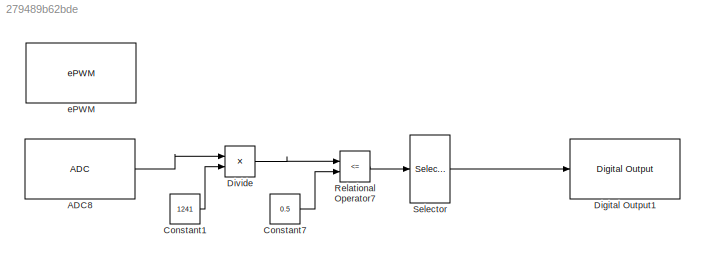
MODEL slx_279489b62bde
KIND model
CONFIG AbsTol = auto
CONFIG EnableMultiTasking = off
CONFIG FixedStep = auto
CONFIG MaxStep = auto
CONFIG MinStep = auto
CONFIG RelTol = 1e-3
CONFIG SampleTimeConstraint = Unconstrained
CONFIG SolverName = VariableStepAuto
CONFIG StartTime = 0.0
CONFIG StopTime = 10.0
WORKSPACE source: mxarray member
WORKSPACE pwmCounterMax = 1500
BLOCK [Reference] ADC8  REF=c2802xlib/ADC
  LibrarySourceBlock = c2806xlib/ADC
  SourceBlock = c2802xlib/ADC
  SourceType = ADC Type 3-5
  UserDataPersistent = on
BLOCK [Constant] Constant1
  Value = 1241
BLOCK [Constant] Constant7
  Value = 0.5
BLOCK [Reference] Digital Output1  REF=c2806xlib/Digital Output
  SourceBlock = c2806xlib/Digital Output
  SourceType = C2806x GPIO Digital Output
  UserDataPersistent = on
BLOCK [Product] Divide
  Inputs = */
BLOCK [RelationalOperator] Relational Operator7
  InputSameDT = off
  Operator = <=
  OutDataTypeStr = boolean
  RndMeth = Simplest
BLOCK [Selector] Selector
  IndexOptions = Index vector (dialog)
  Indices = [1 1 1 2 2 2]
  InputPortWidth = 2
  OutputSizes = 1
BLOCK [Reference] ePWM  REF=c2802xlib/ePWM
  LibrarySourceBlock = c2806xlib/ePWM
  SourceBlock = c2802xlib/ePWM
  SourceType = ePWM Type 1-4
  UserDataPersistent = on
LINE ADC8:1 -> Divide:1
LINE Constant1:1 -> Divide:2
LINE Constant7:1 -> Relational Operator7:2
LINE Divide:1 -> Relational Operator7:1
LINE Relational Operator7:1 -> Selector:1
LINE Selector:1 -> Digital Output1:1
